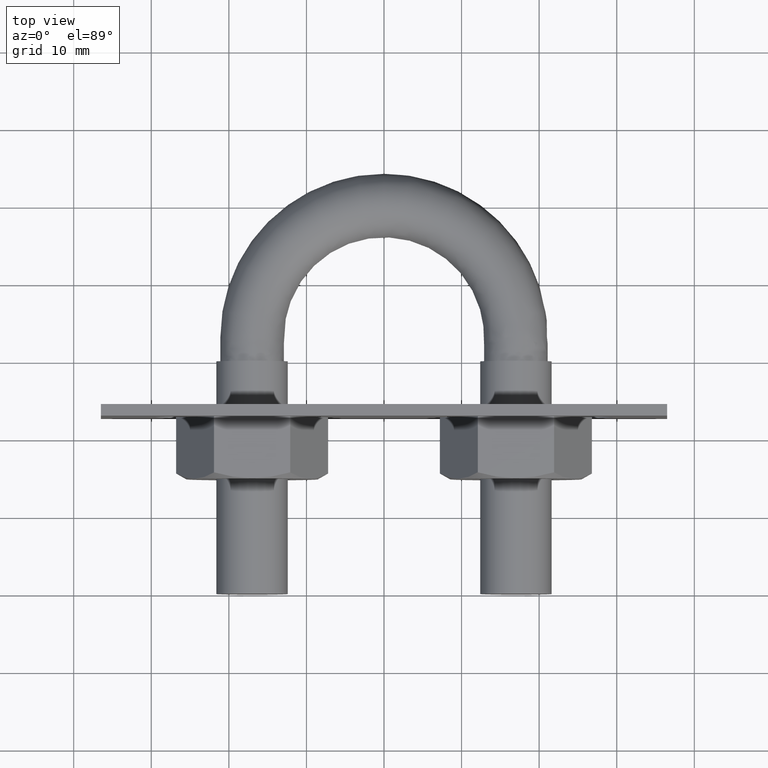
[diagram: clean part render]
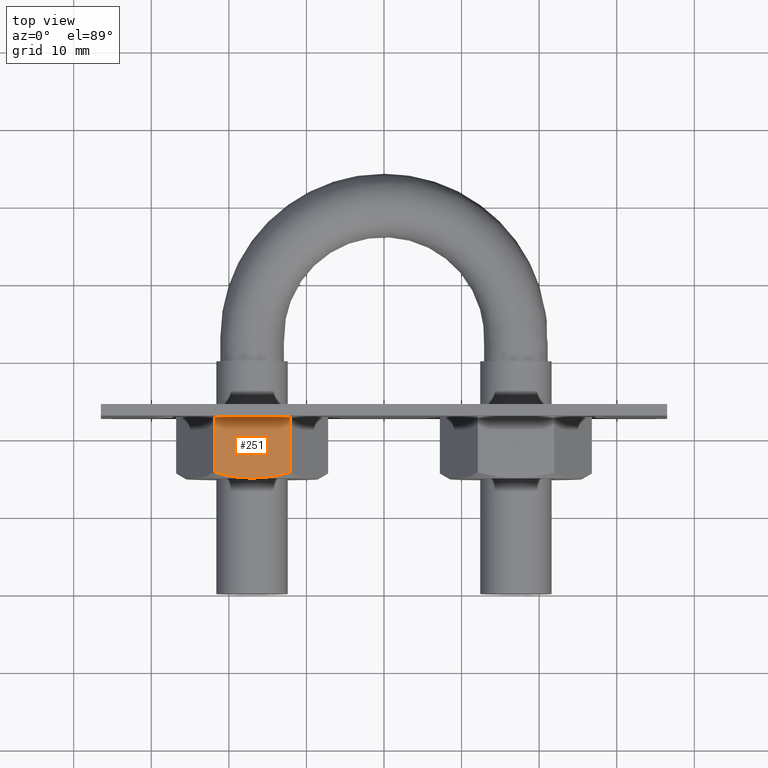
[diagram: same view with one face highlighted and labeled with its STEP entity id]
A machine part, top view. The second image highlights one B-rep face of the part: STEP entity #251.
In plain terms, the highlighted planar face has unit normal (0, -0, -1).
Its self-contained STEP definition (entity closure, byte-faithful):
#251 = ADVANCED_FACE( '', ( #366 ), #367, .F. );
#366 = FACE_OUTER_BOUND( '', #686, .T. );
#367 = PLANE( '', #687 );
#686 = EDGE_LOOP( '', ( #1014, #1015, #1016, #1017, #1018 ) );
#687 = AXIS2_PLACEMENT_3D( '', #1019, #1020, #1021 );
#1014 = ORIENTED_EDGE( '', *, *, #1386, .F. );
#1015 = ORIENTED_EDGE( '', *, *, #1353, .F. );
#1016 = ORIENTED_EDGE( '', *, *, #1387, .F. );
#1017 = ORIENTED_EDGE( '', *, *, #1370, .F. );
#1018 = ORIENTED_EDGE( '', *, *, #1381, .F. );
#1019 = CARTESIAN_POINT( '', ( -21.9074772881109, -7.20000000000000, 8.50000000000000 ) );
#1020 = DIRECTION( '', ( 3.74915180455534E-033, -2.29561756065155E-049, -1.00000000000000 ) );
#1021 = DIRECTION( '', ( -6.12303176911189E-017, -1.00000000000000, 0.000000000000000 ) );
#1353 = EDGE_CURVE( '', #1548, #1551, #1552, .T. );
#1370 = EDGE_CURVE( '', #1580, #1582, #1583, .T. );
#1381 = EDGE_CURVE( '', #1601, #1580, #1603, .T. );
#1386 = EDGE_CURVE( '', #1551, #1601, #1610, .T. );
#1387 = EDGE_CURVE( '', #1582, #1548, #1611, .F. );
#1548 = VERTEX_POINT( '', #1862 );
#1551 = VERTEX_POINT( '', #1865 );
#1552 = B_SPLINE_CURVE_WITH_KNOTS( '', 3, ( #1866, #1867, #1868, #1869, #1870, #1871 ), .UNSPECIFIED., .F., .F., ( 4, 2, 4 ), ( 0.0107224888714697, 0.0132032657403427, 0.0156840426092158 ), .UNSPECIFIED. );
#1580 = VERTEX_POINT( '', #1921 );
#1582 = VERTEX_POINT( '', #1923 );
#1583 = LINE( '', #1924, #1925 );
#1601 = VERTEX_POINT( '', #1947 );
#1603 = LINE( '', #1949, #1950 );
#1610 = B_SPLINE_CURVE_WITH_KNOTS( '', 3, ( #1970, #1971, #1972, #1973, #1974, #1975 ), .UNSPECIFIED., .F., .F., ( 4, 2, 4 ), ( 0.0156840426092158, 0.0181633795370681, 0.0206427164649205 ), .UNSPECIFIED. );
#1611 = LINE( '', #1976, #1977 );
#1862 = CARTESIAN_POINT( '', ( -12.1225006406980, -14.4494446500522, 8.50000000000000 ) );
#1865 = CARTESIAN_POINT( '', ( -17.0000000000000, -15.1999999999985, 8.50000000000000 ) );
#1866 = CARTESIAN_POINT( '', ( -12.1225006406981, -14.4494446500517, 8.50000000000000 ) );
#1867 = CARTESIAN_POINT( '', ( -12.9171260670598, -14.6777799069567, 8.50000000000000 ) );
#1868 = CARTESIAN_POINT( '', ( -13.7187973776768, -14.8663452882808, 8.50000000000000 ) );
#1869 = CARTESIAN_POINT( '', ( -15.3426188305543, -15.1278850822163, 8.50000000000000 ) );
#1870 = CARTESIAN_POINT( '', ( -16.1649212463887, -15.1999999999979, 8.50000000000000 ) );
#1871 = CARTESIAN_POINT( '', ( -17.0000000000001, -15.1999999999979, 8.50000000000000 ) );
#1921 = CARTESIAN_POINT( '', ( -21.8774993593020, -7.20000000000000, 8.50000000000000 ) );
#1923 = CARTESIAN_POINT( '', ( -12.1225006406980, -7.20000000000000, 8.50000000000000 ) );
#1924 = CARTESIAN_POINT( '', ( -26.7999999999982, -7.20000000000000, 8.50000000000000 ) );
#1925 = VECTOR( '', #2334, 999.999999999939 );
#1947 = CARTESIAN_POINT( '', ( -21.8774993593020, -14.4494446500522, 8.50000000000000 ) );
#1949 = CARTESIAN_POINT( '', ( -21.8774993593020, -7.20000000000000, 8.50000000000000 ) );
#1950 = VECTOR( '', #2357, 999.999999999939 );
#1970 = CARTESIAN_POINT( '', ( -17.0000000000001, -15.1999999999979, 8.50000000000000 ) );
#1971 = CARTESIAN_POINT( '', ( -17.8345940408718, -15.1999999999979, 8.50000000000000 ) );
#1972 = CARTESIAN_POINT( '', ( -18.6590982732011, -15.1276895388717, 8.50000000000000 ) );
#1973 = CARTESIAN_POINT( '', ( -20.2828074229589, -14.8660056252248, 8.50000000000000 ) );
#1974 = CARTESIAN_POINT( '', ( -21.0838578122264, -14.6774971896888, 8.50000000000000 ) );
#1975 = CARTESIAN_POINT( '', ( -21.8774993593019, -14.4494446500517, 8.50000000000000 ) );
#1976 = CARTESIAN_POINT( '', ( -12.1225006406980, -7.20000000000000, 8.50000000000000 ) );
#1977 = VECTOR( '', #2362, 999.999999999939 );
#2334 = DIRECTION( '', ( 1.00000000000000, -6.12303176911189E-017, 3.74915180455534E-033 ) );
#2357 = DIRECTION( '', ( 6.12303176911189E-017, 1.00000000000000, 0.000000000000000 ) );
#2362 = DIRECTION( '', ( 6.12303176911189E-017, 1.00000000000000, 0.000000000000000 ) );